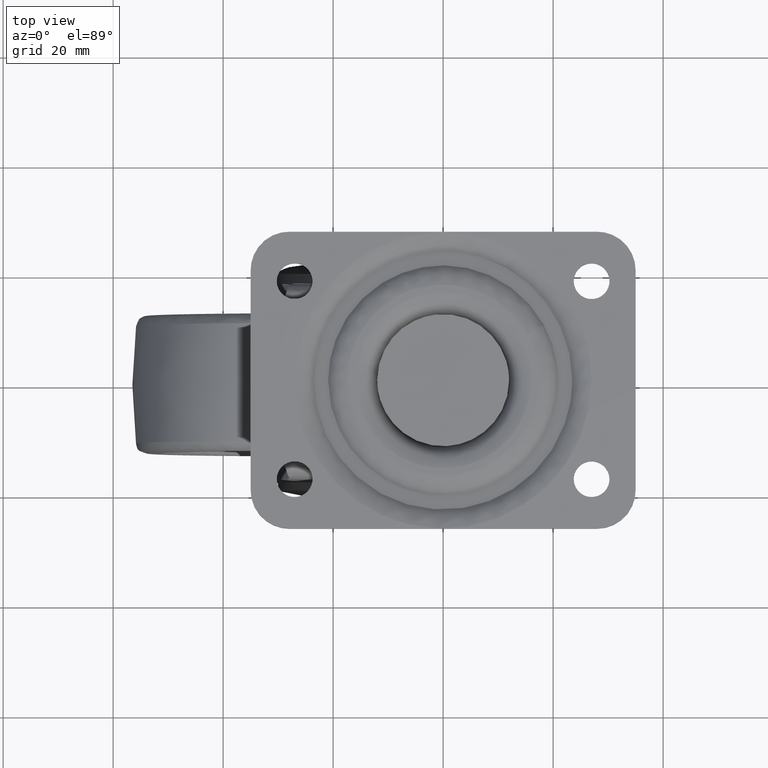
[diagram: clean part render]
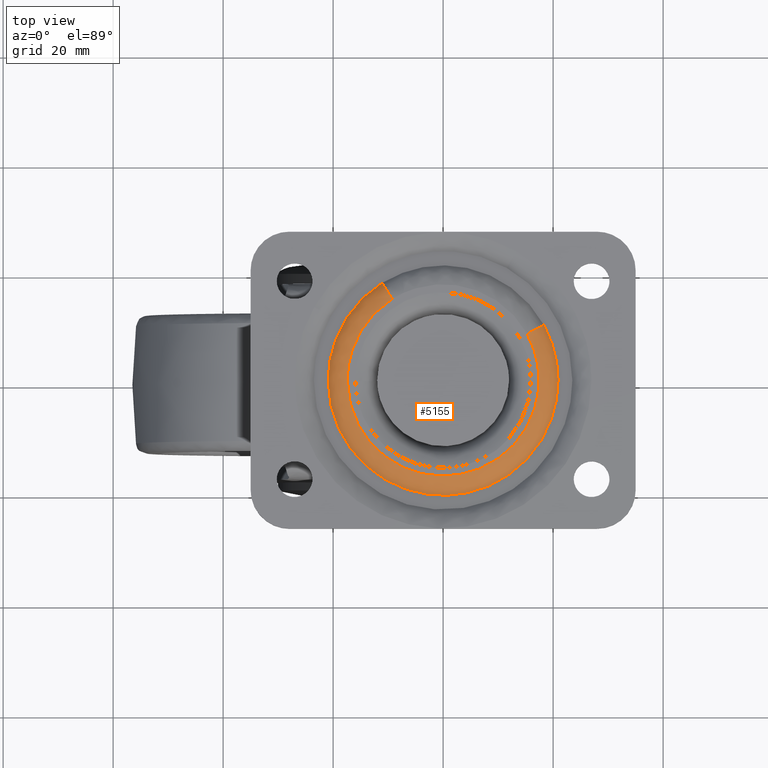
[diagram: same view with one face highlighted and labeled with its STEP entity id]
A machine part, top view. The second image highlights one B-rep face of the part: STEP entity #5155.
In plain terms, the highlighted face is a freeform B-spline surface patch.
Its self-contained STEP definition (entity closure, byte-faithful):
#5000=CARTESIAN_POINT('',(-11.150100983272599,17.789494961886781,-2.174445220147193));
#5001=CARTESIAN_POINT('',(-27.949671744627903,7.259858743092271,-2.174445220147193));
#5002=CARTESIAN_POINT('',(-18.398076652137078,-10.114428230911535,-2.174445220147193));
#5003=CARTESIAN_POINT('',(-8.283648421225539,-28.512504883048610,-2.174445220147192));
#5004=CARTESIAN_POINT('',(10.114428230911534,-18.398076652137078,-2.174445220147193));
#5005=CARTESIAN_POINT('',(28.512504883048610,-8.283648421225543,-2.174445220147192));
#5006=CARTESIAN_POINT('',(18.398076652137078,10.114428230911532,-2.174445220147193));
#5007=CARTESIAN_POINT('',(-10.524272612677210,16.791013364059598,0.122976694224267));
#5008=CARTESIAN_POINT('',(-26.380923842446791,6.852380319824342,0.122976694224267));
#5009=CARTESIAN_POINT('',(-17.365436826670980,-9.546729682822020,0.122976694224267));
#5010=CARTESIAN_POINT('',(-7.818707143848958,-26.912166509492987,0.122976694224267));
#5011=CARTESIAN_POINT('',(9.546729682822017,-17.365436826670980,0.122976694224267));
#5012=CARTESIAN_POINT('',(26.912166509492987,-7.818707143848962,0.122976694224267));
#5013=CARTESIAN_POINT('',(17.365436826670980,9.546729682822015,0.122976694224267));
#5014=CARTESIAN_POINT('',(-9.154693854917376,14.605910785381001,-0.004909388759901));
#5015=CARTESIAN_POINT('',(-22.947835947975776,5.960644152251274,-0.004909388759901));
#5016=CARTESIAN_POINT('',(-15.105581511978704,-8.304363710287387,-0.004909388759901));
#5017=CARTESIAN_POINT('',(-6.801217801691322,-23.409945222266103,-0.004909388759901));
#5018=CARTESIAN_POINT('',(8.304363710287387,-15.105581511978704,-0.004909388759901));
#5019=CARTESIAN_POINT('',(23.409945222266103,-6.801217801691324,-0.004909388759901));
#5020=CARTESIAN_POINT('',(15.105581511978704,8.304363710287385,-0.004909388759901));
#5028=(BOUNDED_SURFACE()B_SPLINE_SURFACE(2,2,((#5000,#5007,#5014),(#5001,#5008,#5015),(#5002,#5009,#5016),(#5003,#5010,#5017),(#5004,#5011,#5018),(#5005,#5012,#5019),(#5006,#5013,#5020)),.UNSPECIFIED.,.F.,.F.,.U.)B_SPLINE_SURFACE_WITH_KNOTS((3,2,2,3),(3,3),(0.0,33.394261267952302,68.179950088735950,102.965638909519600),(0.0,4.715478871624571),.UNSPECIFIED.)GEOMETRIC_REPRESENTATION_ITEM()RATIONAL_B_SPLINE_SURFACE(((0.902172532519353,0.758898016656091,0.904371710915488),(0.663425141514409,0.558066230069215,0.665042337988566),(0.922933175215435,0.776361650272341,0.925182960735221),(0.652612306776866,0.548970587560751,0.654203145374122),(0.922933175215435,0.776361650272341,0.925182960735221),(0.652612306776866,0.548970587560751,0.654203145374122),(0.922933175215435,0.776361650272341,0.925182960735221)))REPRESENTATION_ITEM('')SURFACE());
#5029=CARTESIAN_POINT('',(-9.259911338116236,14.773780644907990,-8.092419E-016));
#5030=VERTEX_POINT('',#5029);
#5031=CARTESIAN_POINT('',(-17.435898384862249,0.0,0.0));
#5032=VERTEX_POINT('',#5031);
#5033=CARTESIAN_POINT('',(-9.259911338116236,14.773780644907989,-8.092419E-016));
#5034=CARTESIAN_POINT('',(-17.435898384862249,9.649234870334650,0.0));
#5035=CARTESIAN_POINT('',(-17.435898384862249,0.0,0.0));
#5043=(BOUNDED_CURVE()B_SPLINE_CURVE(2,(#5033,#5034,#5035),.UNSPECIFIED.,.F.,.U.)B_SPLINE_CURVE_WITH_KNOTS((3,3),(0.840826728947429,1.0),.UNSPECIFIED.)CURVE()GEOMETRIC_REPRESENTATION_ITEM()RATIONAL_B_SPLINE_CURVE((0.864498809753247,0.813516913169385,1.0))REPRESENTATION_ITEM(''));
#5044=EDGE_CURVE('',#5030,#5032,#5043,.T.);
#5045=ORIENTED_EDGE('',*,*,#5044,.F.);
#5046=CARTESIAN_POINT('',(-11.099636430219260,17.708984135096241,-2.000001988137671));
#5047=VERTEX_POINT('',#5046);
#5048=CARTESIAN_POINT('',(-11.099636430219265,17.708984135096241,-2.000001988137671));
#5049=CARTESIAN_POINT('',(-10.486395374995720,16.730583472079619,-1.536286E-009));
#5050=CARTESIAN_POINT('',(-9.259911338116236,14.773780644907996,-8.092419E-016));
#5058=(BOUNDED_CURVE()B_SPLINE_CURVE(2,(#5048,#5049,#5050),.UNSPECIFIED.,.F.,.U.)B_SPLINE_CURVE_WITH_KNOTS((3,3),(-1.633017175936400,-0.356287690315162),.UNSPECIFIED.)CURVE()GEOMETRIC_REPRESENTATION_ITEM()RATIONAL_B_SPLINE_CURVE((0.889754920189924,0.771415516959241,0.891754322091444))REPRESENTATION_ITEM(''));
#5059=EDGE_CURVE('',#5047,#5030,#5058,.T.);
#5060=ORIENTED_EDGE('',*,*,#5059,.F.);
#5061=CARTESIAN_POINT('',(-20.899999999999999,0.0,-2.0));
#5062=VERTEX_POINT('',#5061);
#5063=CARTESIAN_POINT('',(-11.099636430219263,17.708984135096234,-2.000001988137671));
#5064=CARTESIAN_POINT('',(-20.900000304801900,11.566311745934563,-2.000000994068836));
#5065=CARTESIAN_POINT('',(-20.899999999999999,0.0,-2.0));
#5073=(BOUNDED_CURVE()B_SPLINE_CURVE(2,(#5063,#5064,#5065),.UNSPECIFIED.,.F.,.U.)B_SPLINE_CURVE_WITH_KNOTS((3,3),(0.840826716734371,1.0),.UNSPECIFIED.)CURVE()GEOMETRIC_REPRESENTATION_ITEM()RATIONAL_B_SPLINE_CURVE((0.864498817576734,0.813516898860898,1.0))REPRESENTATION_ITEM(''));
#5074=EDGE_CURVE('',#5047,#5062,#5073,.T.);
#5075=ORIENTED_EDGE('',*,*,#5074,.T.);
#5076=CARTESIAN_POINT('',(20.899999999999999,0.0,-2.0));
#5077=VERTEX_POINT('',#5076);
#5078=CARTESIAN_POINT('',(-20.899999999999999,0.0,-2.0));
#5079=CARTESIAN_POINT('',(-20.899999999999999,-20.899999999999999,-2.0));
#5080=CARTESIAN_POINT('',(0.0,-20.899999999999999,-2.0));
#5081=CARTESIAN_POINT('',(20.899999999999999,-20.899999999999999,-2.0));
#5082=CARTESIAN_POINT('',(20.899999999999999,0.0,-2.0));
#5090=(BOUNDED_CURVE()B_SPLINE_CURVE(2,(#5078,#5079,#5080,#5081,#5082),.UNSPECIFIED.,.F.,.U.)B_SPLINE_CURVE_WITH_KNOTS((3,2,3),(0.0,0.250000000000000,0.500000000000000),.UNSPECIFIED.)CURVE()GEOMETRIC_REPRESENTATION_ITEM()RATIONAL_B_SPLINE_CURVE((1.0,0.707106781186547,1.0,0.707106781186547,1.0))REPRESENTATION_ITEM(''));
#5091=EDGE_CURVE('',#5062,#5077,#5090,.T.);
#5092=ORIENTED_EDGE('',*,*,#5091,.T.);
#5093=CARTESIAN_POINT('',(18.314809612915280,10.068651788724679,-1.999999999996801));
#5094=VERTEX_POINT('',#5093);
#5095=CARTESIAN_POINT('',(20.899999999999999,0.0,-2.0));
#5096=CARTESIAN_POINT('',(20.899999999999999,5.366207931685131,-2.0));
#5097=CARTESIAN_POINT('',(18.314809612915280,10.068651788724674,-1.999999999996802));
#5105=(BOUNDED_CURVE()B_SPLINE_CURVE(2,(#5095,#5096,#5097),.UNSPECIFIED.,.F.,.U.)B_SPLINE_CURVE_WITH_KNOTS((3,3),(0.500000000000000,0.582050816103298),.UNSPECIFIED.)CURVE()GEOMETRIC_REPRESENTATION_ITEM()RATIONAL_B_SPLINE_CURVE((1.0,0.903871489460937,0.870842360846071))REPRESENTATION_ITEM(''));
#5106=EDGE_CURVE('',#5077,#5094,#5105,.T.);
#5107=ORIENTED_EDGE('',*,*,#5106,.T.);
#5108=CARTESIAN_POINT('',(15.279194229538930,8.399808109664956,-7.301895E-016));
#5109=VERTEX_POINT('',#5108);
#5110=CARTESIAN_POINT('',(18.314809612915280,10.068651788724676,-1.999999999996801));
#5111=CARTESIAN_POINT('',(17.302937819287500,9.512370562755526,-3.176407E-009));
#5112=CARTESIAN_POINT('',(15.279194229538929,8.399808109664956,-7.301895E-016));
#5120=(BOUNDED_CURVE()B_SPLINE_CURVE(2,(#5110,#5111,#5112),.UNSPECIFIED.,.F.,.U.)B_SPLINE_CURVE_WITH_KNOTS((3,3),(-1.633016444008504,-0.356287691223012),.UNSPECIFIED.)CURVE()GEOMETRIC_REPRESENTATION_ITEM()RATIONAL_B_SPLINE_CURVE((0.910229672071725,0.789167271850610,0.912275222505002))REPRESENTATION_ITEM(''));
#5121=EDGE_CURVE('',#5094,#5109,#5120,.T.);
#5122=ORIENTED_EDGE('',*,*,#5121,.T.);
#5123=CARTESIAN_POINT('',(17.435898384862249,0.0,0.0));
#5124=VERTEX_POINT('',#5123);
#5125=CARTESIAN_POINT('',(17.435898384862249,0.0,0.0));
#5126=CARTESIAN_POINT('',(17.435898384862249,4.476777809243264,0.0));
#5127=CARTESIAN_POINT('',(15.279194229538927,8.399808109664956,-7.301895E-016));
#5135=(BOUNDED_CURVE()B_SPLINE_CURVE(2,(#5125,#5126,#5127),.UNSPECIFIED.,.F.,.U.)B_SPLINE_CURVE_WITH_KNOTS((3,3),(0.500000000000000,0.582050816106691),.UNSPECIFIED.)CURVE()GEOMETRIC_REPRESENTATION_ITEM()RATIONAL_B_SPLINE_CURVE((1.0,0.903871489456962,0.870842360843340))REPRESENTATION_ITEM(''));
#5136=EDGE_CURVE('',#5124,#5109,#5135,.T.);
#5137=ORIENTED_EDGE('',*,*,#5136,.F.);
#5138=CARTESIAN_POINT('',(-17.435898384862249,0.0,0.0));
#5139=CARTESIAN_POINT('',(-17.435898384862252,-17.435898384862252,0.0));
#5140=CARTESIAN_POINT('',(0.0,-17.435898384862249,0.0));
#5141=CARTESIAN_POINT('',(17.435898384862252,-17.435898384862252,0.0));
#5142=CARTESIAN_POINT('',(17.435898384862249,0.0,0.0));
#5150=(BOUNDED_CURVE()B_SPLINE_CURVE(2,(#5138,#5139,#5140,#5141,#5142),.UNSPECIFIED.,.F.,.U.)B_SPLINE_CURVE_WITH_KNOTS((3,2,3),(0.0,0.250000000000000,0.500000000000000),.UNSPECIFIED.)CURVE()GEOMETRIC_REPRESENTATION_ITEM()RATIONAL_B_SPLINE_CURVE((1.0,0.707106781186548,1.0,0.707106781186548,1.0))REPRESENTATION_ITEM(''));
#5151=EDGE_CURVE('',#5032,#5124,#5150,.T.);
#5152=ORIENTED_EDGE('',*,*,#5151,.F.);
#5153=EDGE_LOOP('',(#5045,#5060,#5075,#5092,#5107,#5122,#5137,#5152));
#5154=FACE_OUTER_BOUND('',#5153,.T.);
#5155=ADVANCED_FACE('',(#5154),#5028,.T.);